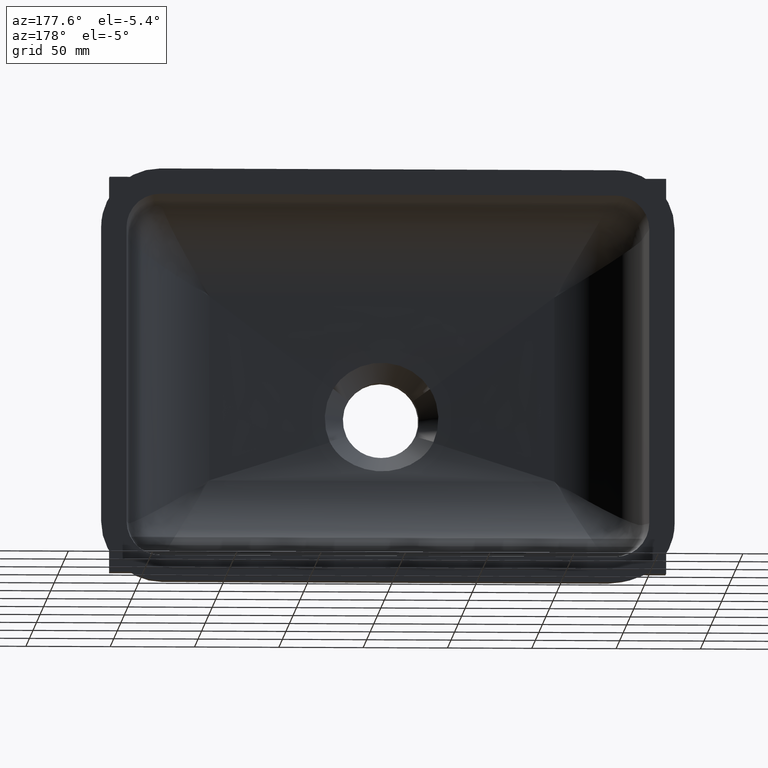
[diagram: clean part render]
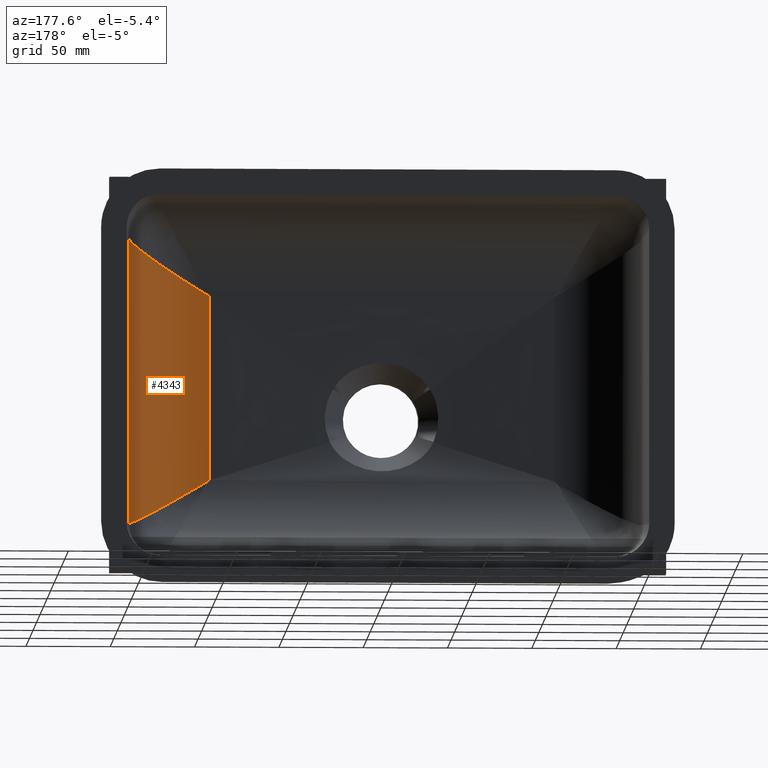
[diagram: same view with one face highlighted and labeled with its STEP entity id]
A machine part, auxiliary view. The second image highlights one B-rep face of the part: STEP entity #4343.
In plain terms, the highlighted cylindrical surface (partial cylindrical patch) has radius 50 mm, axis along (-0, 0, 1).
Its self-contained STEP definition (entity closure, byte-faithful):
#176 = CARTESIAN_POINT ( 'NONE',  ( 130.0634361850866900, -86.00000000000000000, 71.48479467639860700 ) ) ;
#178 = VERTEX_POINT ( 'NONE', #5169 ) ;
#184 = CARTESIAN_POINT ( 'NONE',  ( 102.3668324133667800, -86.00000000000000000, -54.86683241336668700 ) ) ;
#379 = LINE ( 'NONE', #3890, #7172 ) ;
#708 = CARTESIAN_POINT ( 'NONE',  ( 130.0634361850866900, -86.00000000000000000, -71.48479467639862200 ) ) ;
#723 = CARTESIAN_POINT ( 'NONE',  ( 152.2455874551778300, -39.47991314245189900, -84.79408543845330800 ) ) ;
#1076 = ORIENTED_EDGE ( 'NONE', *, *, #2278, .F. ) ;
#1229 =( BOUNDED_CURVE ( )  B_SPLINE_CURVE ( 3, ( #6290, #1824, #176, #2962 ),
 .UNSPECIFIED., .F., .T. ) 
 B_SPLINE_CURVE_WITH_KNOTS ( ( 4, 4 ),
 ( 0.06965457372856762000, 1.570796326794896600 ),
 .UNSPECIFIED. ) 
 CURVE ( )  GEOMETRIC_REPRESENTATION_ITEM ( )  RATIONAL_B_SPLINE_CURVE ( ( 1.000000000000000000, 0.8208664120627071600, 0.8208664120627071600, 1.000000000000000000 ) ) 
 REPRESENTATION_ITEM ( '' )  );
#1318 = VERTEX_POINT ( 'NONE', #4048 ) ;
#1457 = EDGE_CURVE ( 'NONE', #1888, #1318, #1229, .T. ) ;
#1460 = CYLINDRICAL_SURFACE ( 'NONE', #2143, 50.00000000000001400 ) ;
#1506 = ORIENTED_EDGE ( 'NONE', *, *, #5656, .T. ) ;
#1508 = ORIENTED_EDGE ( 'NONE', *, *, #3974, .T. ) ;
#1824 = CARTESIAN_POINT ( 'NONE',  ( 150.3179519458480200, -67.10935544284623700, 83.63750413285536900 ) ) ;
#1888 = VERTEX_POINT ( 'NONE', #5829 ) ;
#2143 = AXIS2_PLACEMENT_3D ( 'NONE', #5371, #3172, #6656 ) ;
#2278 = EDGE_CURVE ( 'NONE', #178, #6898, #3336, .T. ) ;
#2559 = ORIENTED_EDGE ( 'NONE', *, *, #1457, .F. ) ;
#2758 = FACE_OUTER_BOUND ( 'NONE', #3059, .T. ) ;
#2962 = CARTESIAN_POINT ( 'NONE',  ( 102.3668324133667800, -86.00000000000000000, 54.86683241336665200 ) ) ;
#3059 = EDGE_LOOP ( 'NONE', ( #1506, #2559, #1508, #1076 ) ) ;
#3115 = CARTESIAN_POINT ( 'NONE',  ( 152.2455874551778300, -39.47991314245189900, -84.79408543845330800 ) ) ;
#3172 = DIRECTION ( 'NONE',  ( -0.0000000000000000000, 0.0000000000000000000, 1.000000000000000000 ) ) ;
#3336 =( BOUNDED_CURVE ( )  B_SPLINE_CURVE ( 3, ( #184, #708, #5179, #723 ),
 .UNSPECIFIED., .F., .F. ) 
 B_SPLINE_CURVE_WITH_KNOTS ( ( 4, 4 ),
 ( 4.712388980384689700, 6.213530733451018600 ),
 .UNSPECIFIED. ) 
 CURVE ( )  GEOMETRIC_REPRESENTATION_ITEM ( )  RATIONAL_B_SPLINE_CURVE ( ( 1.000000000000000000, 0.8208664120627071600, 0.8208664120627071600, 1.000000000000000000 ) ) 
 REPRESENTATION_ITEM ( '' )  );
#3342 = DIRECTION ( 'NONE',  ( -0.0000000000000000000, -0.0000000000000000000, 1.000000000000000000 ) ) ;
#3890 = CARTESIAN_POINT ( 'NONE',  ( 102.3668324133667800, -86.00000000000000000, 101.4999999999998600 ) ) ;
#3974 = EDGE_CURVE ( 'NONE', #1888, #6898, #5731, .T. ) ;
#4048 = CARTESIAN_POINT ( 'NONE',  ( 102.3668324133667800, -86.00000000000000000, 54.86683241336665200 ) ) ;
#4103 = DIRECTION ( 'NONE',  ( 0.0000000000000000000, 0.0000000000000000000, -1.000000000000000000 ) ) ;
#4343 = ADVANCED_FACE ( 'NONE', ( #2758 ), #1460, .F. ) ;
#5169 = CARTESIAN_POINT ( 'NONE',  ( 102.3668324133667800, -86.00000000000000000, -54.86683241336668700 ) ) ;
#5179 = CARTESIAN_POINT ( 'NONE',  ( 150.3179519458479700, -67.10935544284626500, -83.63750413285544000 ) ) ;
#5371 = CARTESIAN_POINT ( 'NONE',  ( 102.3668324133667800, -35.99999999999999300, -107.4999999999999400 ) ) ;
#5656 = EDGE_CURVE ( 'NONE', #178, #1318, #379, .T. ) ;
#5731 = LINE ( 'NONE', #5944, #6912 ) ;
#5829 = CARTESIAN_POINT ( 'NONE',  ( 152.2455874551778300, -39.47991314245189900, 84.79408543845326600 ) ) ;
#5944 = CARTESIAN_POINT ( 'NONE',  ( 152.2455874551778300, -39.47991314245189900, -101.5000000000000000 ) ) ;
#6290 = CARTESIAN_POINT ( 'NONE',  ( 152.2455874551778300, -39.47991314245189900, 84.79408543845326600 ) ) ;
#6656 = DIRECTION ( 'NONE',  ( 1.000000000000000000, 0.0000000000000000000, 0.0000000000000000000 ) ) ;
#6898 = VERTEX_POINT ( 'NONE', #3115 ) ;
#6912 = VECTOR ( 'NONE', #4103, 1000.000000000000000 ) ;
#7172 = VECTOR ( 'NONE', #3342, 1000.000000000000000 ) ;